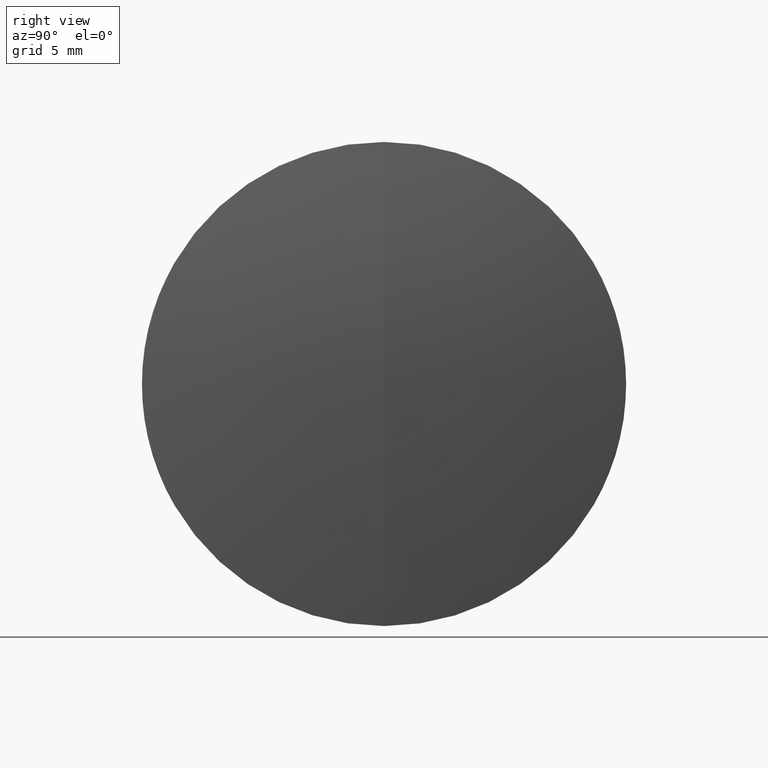
[diagram: clean part render]
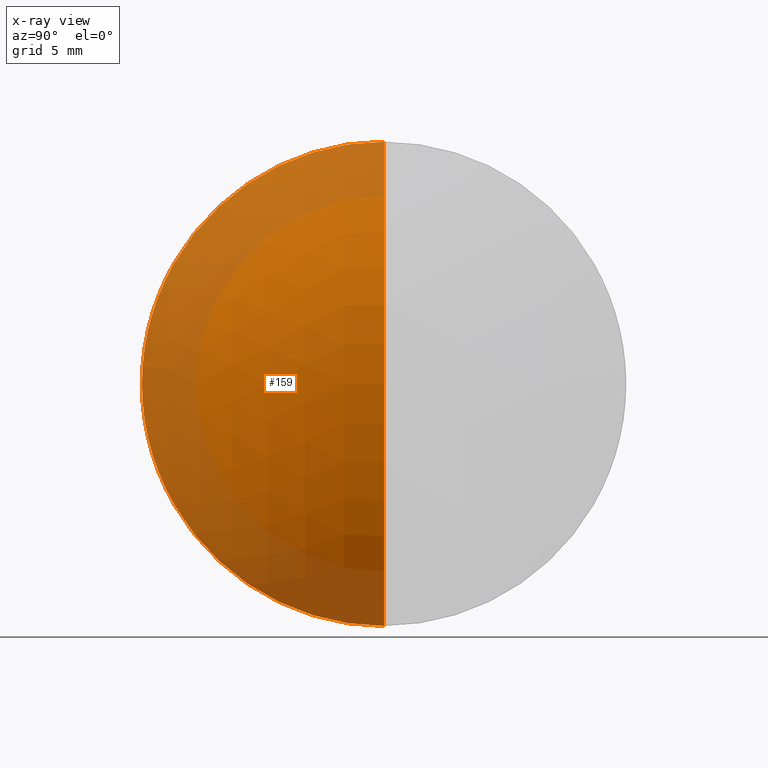
[diagram: x-ray — body ghosted, one internal face saturated and labeled with its STEP entity id]
A machine part, right view, then the same camera in x-ray: the body is ghosted and one INTERNAL B-rep face — a face not visible from any outside direction — is saturated and labeled: STEP entity #159.
In plain terms, the highlighted spherical surface has radius 16.18 mm.
Its self-contained STEP definition (entity closure, byte-faithful):
#14 = EDGE_CURVE ( 'NONE', #267, #157, #317, .T. ) ;
#42 = EDGE_LOOP ( 'NONE', ( #79, #74, #84 ) ) ;
#47 = CARTESIAN_POINT ( 'NONE',  ( 280.6589865545651000, 0.0000000000000000000, 7.929633164417436900E-015 ) ) ;
#53 = AXIS2_PLACEMENT_3D ( 'NONE', #243, #151, #341 ) ;
#72 = CARTESIAN_POINT ( 'NONE',  ( 274.5040750828525800, 0.0000000000000000000, 12.69999999999999600 ) ) ;
#74 = ORIENTED_EDGE ( 'NONE', *, *, #14, .T. ) ;
#76 = AXIS2_PLACEMENT_3D ( 'NONE', #138, #241, #297 ) ;
#77 = DIRECTION ( 'NONE',  ( 0.0000000000000000000, 0.0000000000000000000, 1.000000000000000000 ) ) ;
#79 = ORIENTED_EDGE ( 'NONE', *, *, #169, .F. ) ;
#84 = ORIENTED_EDGE ( 'NONE', *, *, #294, .F. ) ;
#99 = DIRECTION ( 'NONE',  ( 0.0000000000000000000, 0.0000000000000000000, -1.000000000000000000 ) ) ;
#104 = AXIS2_PLACEMENT_3D ( 'NONE', #234, #287, #77 ) ;
#122 = FACE_OUTER_BOUND ( 'NONE', #42, .T. ) ;
#138 = CARTESIAN_POINT ( 'NONE',  ( 274.5040750828525800, 0.0000000000000000000, 0.0000000000000000000 ) ) ;
#142 = CIRCLE ( 'NONE', #76, 12.69999999999999600 ) ;
#151 = DIRECTION ( 'NONE',  ( -0.0000000000000000000, 1.000000000000000000, 1.224646799147353200E-016 ) ) ;
#155 = CARTESIAN_POINT ( 'NONE',  ( 264.4789865545651500, 0.0000000000000000000, 6.938893903907228400E-015 ) ) ;
#157 = VERTEX_POINT ( 'NONE', #72 ) ;
#159 = ADVANCED_FACE ( 'NONE', ( #122 ), #303, .T. ) ;
#169 = EDGE_CURVE ( 'NONE', #267, #189, #333, .T. ) ;
#189 = VERTEX_POINT ( 'NONE', #336 ) ;
#234 = CARTESIAN_POINT ( 'NONE',  ( 264.4789865545651500, 0.0000000000000000000, 6.938893903907228400E-015 ) ) ;
#241 = DIRECTION ( 'NONE',  ( -1.000000000000000000, -0.0000000000000000000, -0.0000000000000000000 ) ) ;
#243 = CARTESIAN_POINT ( 'NONE',  ( 264.4789865545651500, 0.0000000000000000000, 6.938893903907228400E-015 ) ) ;
#267 = VERTEX_POINT ( 'NONE', #47 ) ;
#287 = DIRECTION ( 'NONE',  ( 0.0000000000000000000, 1.000000000000000000, 0.0000000000000000000 ) ) ;
#294 = EDGE_CURVE ( 'NONE', #189, #157, #142, .T. ) ;
#297 = DIRECTION ( 'NONE',  ( 0.0000000000000000000, 0.0000000000000000000, 1.000000000000000000 ) ) ;
#303 = SPHERICAL_SURFACE ( 'NONE', #104, 16.18000000000000000 ) ;
#316 = DIRECTION ( 'NONE',  ( 0.0000000000000000000, -1.000000000000000000, 0.0000000000000000000 ) ) ;
#317 = CIRCLE ( 'NONE', #338, 16.18000000000000000 ) ;
#333 = CIRCLE ( 'NONE', #53, 16.18000000000000000 ) ;
#336 = CARTESIAN_POINT ( 'NONE',  ( 274.5040750828525800, 1.555301434917138200E-015, -12.69999999999999600 ) ) ;
#338 = AXIS2_PLACEMENT_3D ( 'NONE', #155, #316, #99 ) ;
#341 = DIRECTION ( 'NONE',  ( 0.0000000000000000000, -1.224646799147353200E-016, 1.000000000000000000 ) ) ;